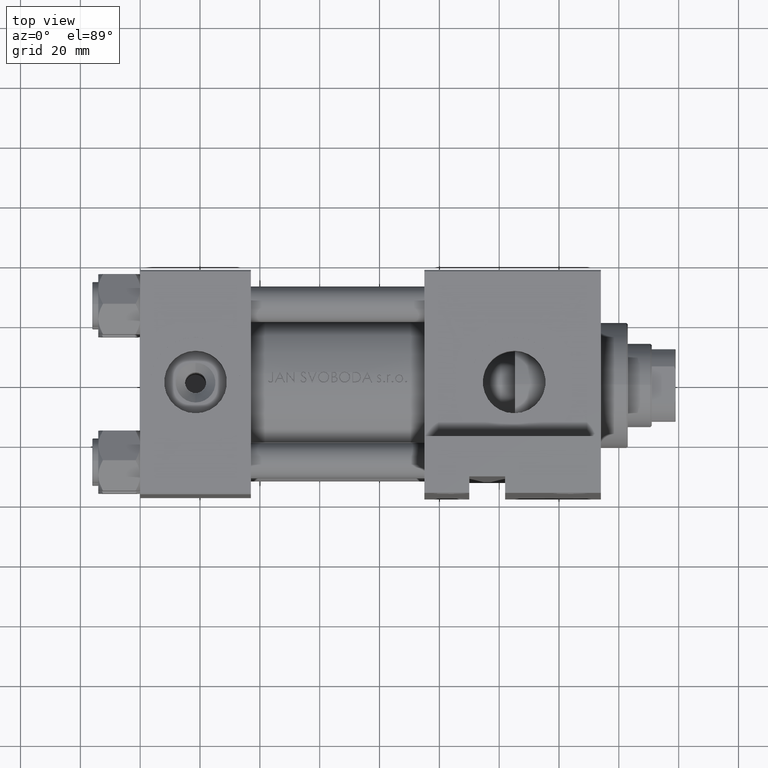
[diagram: clean part render]
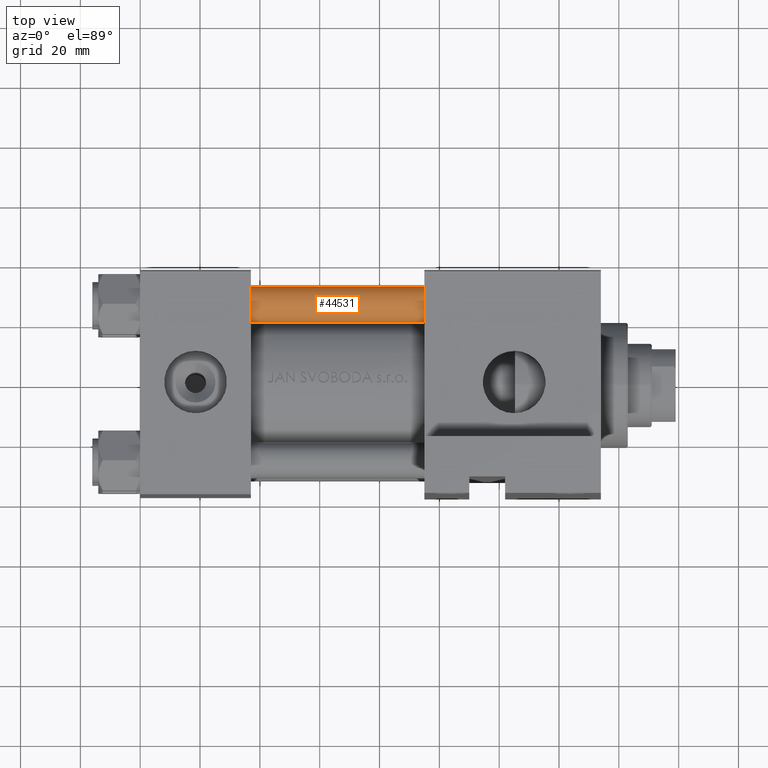
[diagram: same view with one face highlighted and labeled with its STEP entity id]
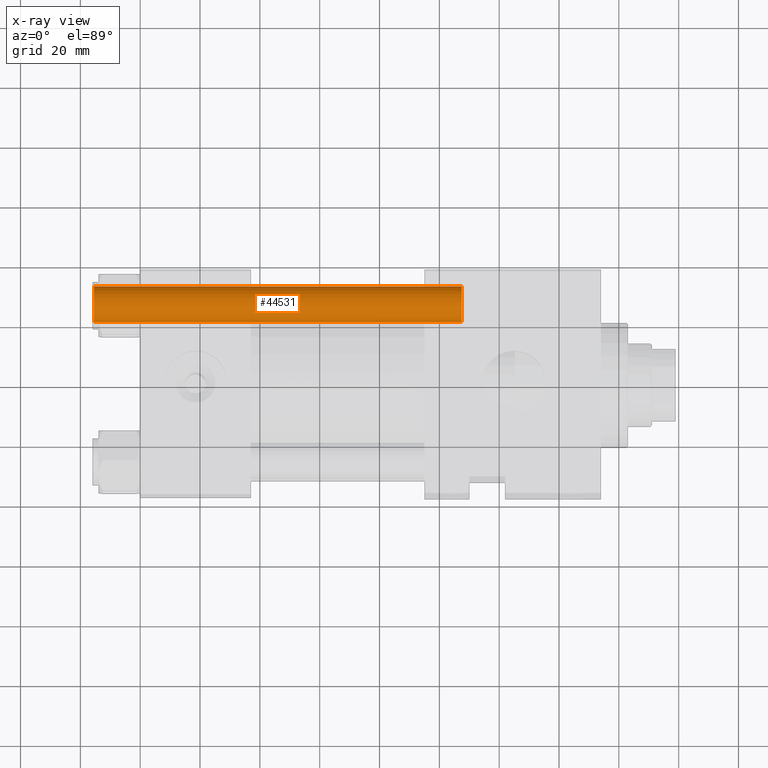
[diagram: x-ray of the same camera — body ghosted, the highlighted face saturated]
A machine part, top view. The second image highlights one B-rep face of the part: STEP entity #44531.
The next image is the same camera in x-ray: the body ghosted, the highlighted face saturated — about 0% of this face is hidden behind the body in this view.
In plain terms, the highlighted cylindrical surface (edge-blend (fillet) strip) has radius 6 mm, axis along (1, -0, 0).
Its self-contained STEP definition (entity closure, byte-faithful):
#885 = CARTESIAN_POINT ( 'NONE',  ( 0.000000000000000000, 0.000000000000000000, 124.0000000000000000 ) ) ;
#1286 = LINE ( 'NONE', #23661, #38953 ) ;
#2370 = CIRCLE ( 'NONE', #17606, 6.000000000000000888 ) ;
#3139 = CARTESIAN_POINT ( 'NONE',  ( -6.000000000000000888, 0.000000000000000000, 123.5000000000000426 ) ) ;
#3711 = DIRECTION ( 'NONE',  ( -0.000000000000000000, -0.000000000000000000, -1.000000000000000000 ) ) ;
#5154 = CYLINDRICAL_SURFACE ( 'NONE', #28075, 6.000000000000000888 ) ;
#5465 = EDGE_CURVE ( 'NONE', #11799, #38614, #19297, .T. ) ;
#5946 = AXIS2_PLACEMENT_3D ( 'NONE', #30246, #33518, #10678 ) ;
#7586 = CARTESIAN_POINT ( 'NONE',  ( 0.000000000000000000, 0.000000000000000000, 0.4999999999999865663 ) ) ;
#9341 = DIRECTION ( 'NONE',  ( -0.000000000000000000, -0.000000000000000000, -1.000000000000000000 ) ) ;
#10205 = CARTESIAN_POINT ( 'NONE',  ( 6.000000000000000888, 7.347880794884120722E-16, 123.5000000000000426 ) ) ;
#10678 = DIRECTION ( 'NONE',  ( 1.000000000000000000, 0.000000000000000000, 0.000000000000000000 ) ) ;
#11799 = VERTEX_POINT ( 'NONE', #10205 ) ;
#12322 = CARTESIAN_POINT ( 'NONE',  ( -6.000000000000000888, 0.000000000000000000, 0.4999999999999865663 ) ) ;
#16756 = VECTOR ( 'NONE', #3711, 1000.000000000000000 ) ;
#17606 = AXIS2_PLACEMENT_3D ( 'NONE', #7586, #22675, #33746 ) ;
#19297 = LINE ( 'NONE', #19550, #16756 ) ;
#19550 = CARTESIAN_POINT ( 'NONE',  ( 6.000000000000000888, 7.347880794884120722E-16, 124.0000000000000000 ) ) ;
#19736 = FACE_OUTER_BOUND ( 'NONE', #29177, .T. ) ;
#21261 = EDGE_CURVE ( 'NONE', #11799, #33475, #31647, .T. ) ;
#22675 = DIRECTION ( 'NONE',  ( -0.000000000000000000, -0.000000000000000000, 1.000000000000000000 ) ) ;
#23661 = CARTESIAN_POINT ( 'NONE',  ( -6.000000000000000888, 0.000000000000000000, 124.0000000000000000 ) ) ;
#24892 = ORIENTED_EDGE ( 'NONE', *, *, #33901, .T. ) ;
#25529 = ORIENTED_EDGE ( 'NONE', *, *, #21261, .T. ) ;
#28075 = AXIS2_PLACEMENT_3D ( 'NONE', #885, #46862, #35808 ) ;
#29177 = EDGE_LOOP ( 'NONE', ( #41901, #25529, #33994, #24892 ) ) ;
#30246 = CARTESIAN_POINT ( 'NONE',  ( 0.000000000000000000, 0.000000000000000000, 123.5000000000000426 ) ) ;
#31647 = CIRCLE ( 'NONE', #5946, 6.000000000000000888 ) ;
#33475 = VERTEX_POINT ( 'NONE', #3139 ) ;
#33518 = DIRECTION ( 'NONE',  ( 0.000000000000000000, 0.000000000000000000, -1.000000000000000000 ) ) ;
#33746 = DIRECTION ( 'NONE',  ( 1.000000000000000000, 0.000000000000000000, 0.000000000000000000 ) ) ;
#33901 = EDGE_CURVE ( 'NONE', #35325, #38614, #2370, .T. ) ;
#33994 = ORIENTED_EDGE ( 'NONE', *, *, #38248, .T. ) ;
#35325 = VERTEX_POINT ( 'NONE', #12322 ) ;
#35808 = DIRECTION ( 'NONE',  ( -1.000000000000000000, 0.000000000000000000, 0.000000000000000000 ) ) ;
#38248 = EDGE_CURVE ( 'NONE', #33475, #35325, #1286, .T. ) ;
#38614 = VERTEX_POINT ( 'NONE', #47939 ) ;
#38953 = VECTOR ( 'NONE', #9341, 1000.000000000000000 ) ;
#41901 = ORIENTED_EDGE ( 'NONE', *, *, #5465, .F. ) ;
#44531 = ADVANCED_FACE ( 'NONE', ( #19736 ), #5154, .T. ) ;
#46862 = DIRECTION ( 'NONE',  ( -0.000000000000000000, -0.000000000000000000, -1.000000000000000000 ) ) ;
#47939 = CARTESIAN_POINT ( 'NONE',  ( 6.000000000000000888, 7.347880794884120722E-16, 0.4999999999999865663 ) ) ;